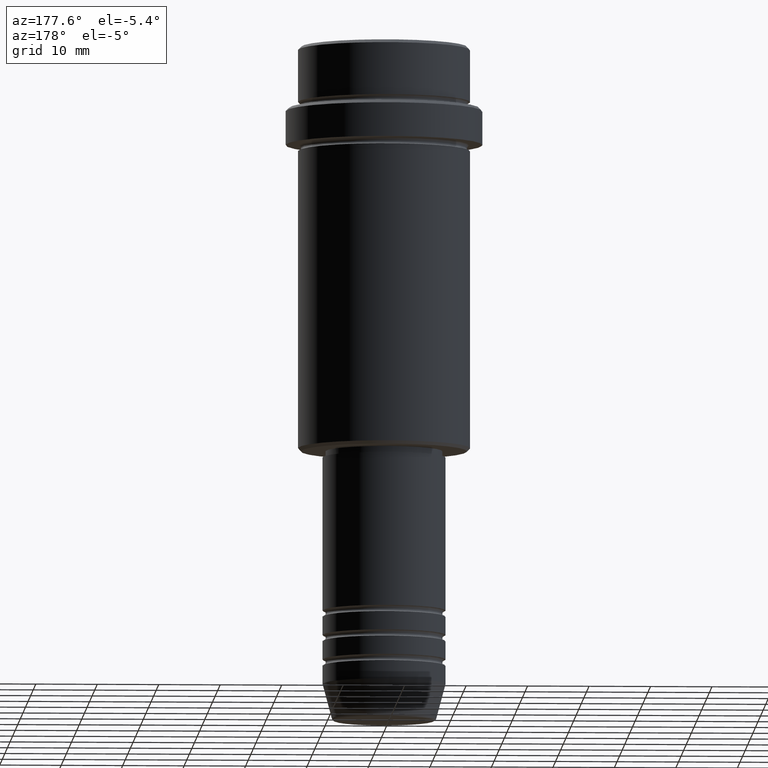
[diagram: clean part render]
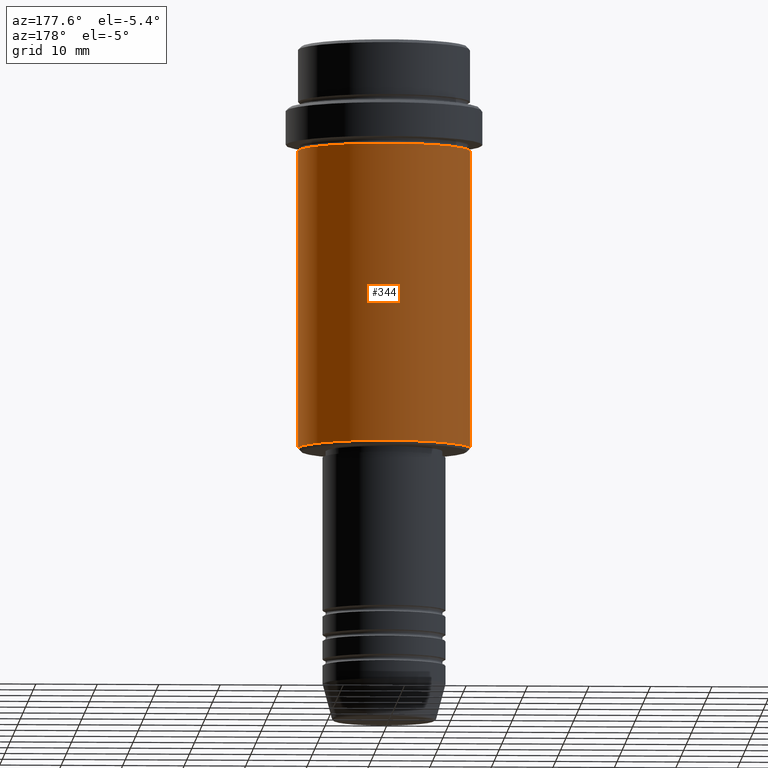
[diagram: same view with one face highlighted and labeled with its STEP entity id]
A machine part, auxiliary view. The second image highlights one B-rep face of the part: STEP entity #344.
In plain terms, the highlighted cylindrical surface (partial cylindrical patch) has radius 14 mm, axis along (-0, -0, 1).
Its self-contained STEP definition (entity closure, byte-faithful):
#13 = VERTEX_POINT ( 'NONE', #1053 ) ;
#46 = VECTOR ( 'NONE', #1363, 1000.000000000000000 ) ;
#117 = AXIS2_PLACEMENT_3D ( 'NONE', #780, #1206, #1231 ) ;
#180 = LINE ( 'NONE', #736, #1291 ) ;
#209 = ORIENTED_EDGE ( 'NONE', *, *, #856, .F. ) ;
#229 = FACE_OUTER_BOUND ( 'NONE', #1277, .T. ) ;
#294 = EDGE_CURVE ( 'NONE', #1401, #13, #550, .T. ) ;
#302 = AXIS2_PLACEMENT_3D ( 'NONE', #453, #804, #900 ) ;
#334 = CARTESIAN_POINT ( 'NONE',  ( 0.000000000000000000, 0.000000000000000000, -65.50000000000004263 ) ) ;
#344 = ADVANCED_FACE ( 'NONE', ( #229 ), #642, .T. ) ;
#453 = CARTESIAN_POINT ( 'NONE',  ( 0.000000000000000000, 0.000000000000000000, -17.00000000000001066 ) ) ;
#484 = DIRECTION ( 'NONE',  ( -0.000000000000000000, -0.000000000000000000, 1.000000000000000000 ) ) ;
#503 = CARTESIAN_POINT ( 'NONE',  ( 13.99999999999999467, 0.000000000000000000, -65.50000000000004263 ) ) ;
#534 = DIRECTION ( 'NONE',  ( -1.000000000000000000, 0.000000000000000000, 0.000000000000000000 ) ) ;
#545 = EDGE_CURVE ( 'NONE', #13, #1217, #1290, .T. ) ;
#550 = CIRCLE ( 'NONE', #880, 13.99999999999999467 ) ;
#568 = EDGE_CURVE ( 'NONE', #1401, #1214, #180, .T. ) ;
#642 = CYLINDRICAL_SURFACE ( 'NONE', #117, 13.99999999999999467 ) ;
#696 = CARTESIAN_POINT ( 'NONE',  ( -13.99999999999999112, 1.714505518806293849E-15, -17.00000000000001066 ) ) ;
#704 = CARTESIAN_POINT ( 'NONE',  ( 13.99999999999999112, 0.000000000000000000, -17.00000000000001066 ) ) ;
#721 = CARTESIAN_POINT ( 'NONE',  ( -13.99999999999999467, 1.714505518806294046E-15, 0.000000000000000000 ) ) ;
#736 = CARTESIAN_POINT ( 'NONE',  ( 13.99999999999999467, 0.000000000000000000, 0.000000000000000000 ) ) ;
#780 = CARTESIAN_POINT ( 'NONE',  ( 0.000000000000000000, 0.000000000000000000, 0.000000000000000000 ) ) ;
#804 = DIRECTION ( 'NONE',  ( -0.000000000000000000, -0.000000000000000000, 1.000000000000000000 ) ) ;
#841 = ORIENTED_EDGE ( 'NONE', *, *, #545, .T. ) ;
#856 = EDGE_CURVE ( 'NONE', #1214, #1217, #1251, .T. ) ;
#880 = AXIS2_PLACEMENT_3D ( 'NONE', #334, #1098, #534 ) ;
#900 = DIRECTION ( 'NONE',  ( 1.000000000000000000, 0.000000000000000000, 0.000000000000000000 ) ) ;
#1053 = CARTESIAN_POINT ( 'NONE',  ( -13.99999999999999467, 1.714505518806294046E-15, -65.50000000000004263 ) ) ;
#1073 = ORIENTED_EDGE ( 'NONE', *, *, #294, .T. ) ;
#1098 = DIRECTION ( 'NONE',  ( -0.000000000000000000, -0.000000000000000000, 1.000000000000000000 ) ) ;
#1206 = DIRECTION ( 'NONE',  ( -0.000000000000000000, -0.000000000000000000, 1.000000000000000000 ) ) ;
#1214 = VERTEX_POINT ( 'NONE', #704 ) ;
#1217 = VERTEX_POINT ( 'NONE', #696 ) ;
#1231 = DIRECTION ( 'NONE',  ( 1.000000000000000000, 0.000000000000000000, 0.000000000000000000 ) ) ;
#1251 = CIRCLE ( 'NONE', #302, 13.99999999999999112 ) ;
#1277 = EDGE_LOOP ( 'NONE', ( #1073, #841, #209, #1321 ) ) ;
#1290 = LINE ( 'NONE', #721, #46 ) ;
#1291 = VECTOR ( 'NONE', #484, 1000.000000000000000 ) ;
#1321 = ORIENTED_EDGE ( 'NONE', *, *, #568, .F. ) ;
#1363 = DIRECTION ( 'NONE',  ( -0.000000000000000000, -0.000000000000000000, 1.000000000000000000 ) ) ;
#1401 = VERTEX_POINT ( 'NONE', #503 ) ;